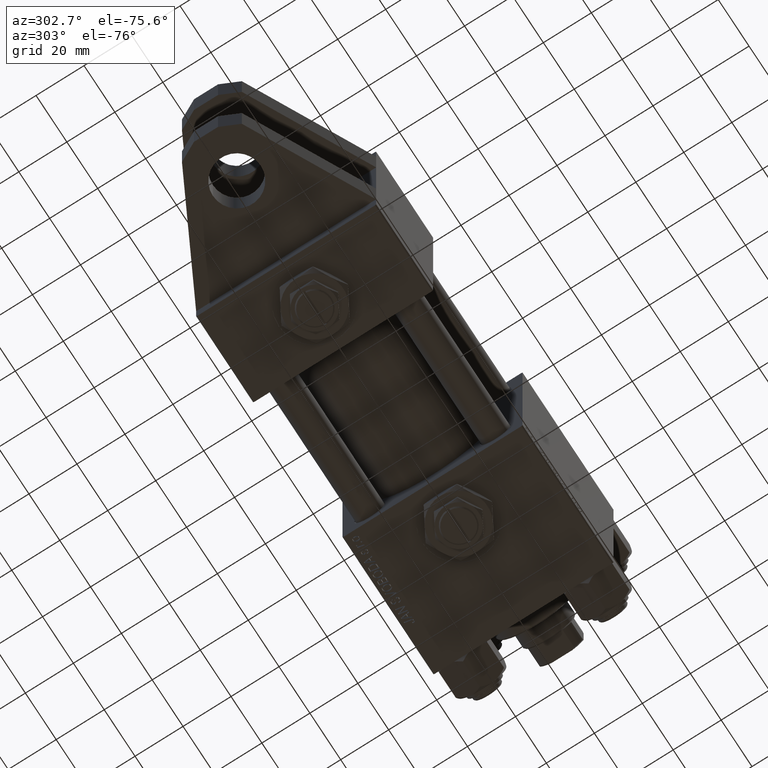
[diagram: clean part render]
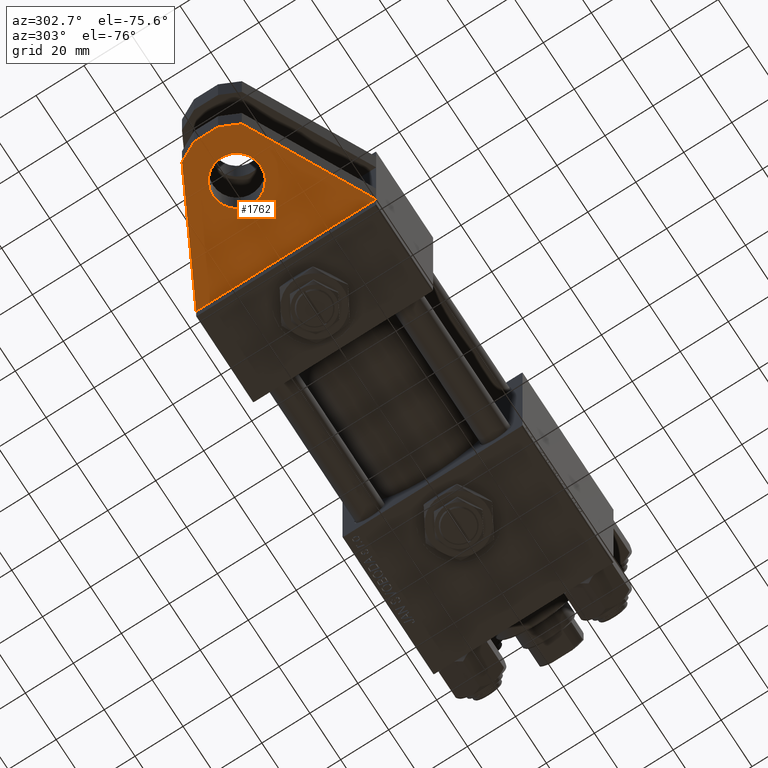
[diagram: same view with one face highlighted and labeled with its STEP entity id]
A machine part, auxiliary view. The second image highlights one B-rep face of the part: STEP entity #1762.
In plain terms, the highlighted planar face has unit normal (0, 0, -1).
Its self-contained STEP definition (entity closure, byte-faithful):
#857 = DIRECTION ( 'NONE',  ( 0.000000000000000000, 1.000000000000000000, 0.000000000000000000 ) ) ;
#1125 = EDGE_CURVE ( 'NONE', #35810, #23468, #9716, .T. ) ;
#1762 = ADVANCED_FACE ( 'NONE', ( #9073, #40982 ), #48820, .T. ) ;
#2249 = VERTEX_POINT ( 'NONE', #18892 ) ;
#3546 = CARTESIAN_POINT ( 'NONE',  ( -52.00000000000000711, 30.00000000000000000, 4.999999999999992895 ) ) ;
#3891 = VERTEX_POINT ( 'NONE', #40420 ) ;
#6508 = DIRECTION ( 'NONE',  ( 0.8875055616531780656, 0.000000000000000000, 0.4607970030660757943 ) ) ;
#6555 = CIRCLE ( 'NONE', #20767, 10.00000000000000000 ) ;
#6766 = CARTESIAN_POINT ( 'NONE',  ( -48.15077811301358679, 30.00000000000000000, 12.49989272354909353 ) ) ;
#7259 = VERTEX_POINT ( 'NONE', #12391 ) ;
#7728 = LINE ( 'NONE', #3546, #36171 ) ;
#8822 = CARTESIAN_POINT ( 'NONE',  ( 0.000000000000000000, 30.00000000000000000, 0.000000000000000000 ) ) ;
#8826 = CARTESIAN_POINT ( 'NONE',  ( -52.00000000000000711, 30.00000000000000000, -5.000000000000007105 ) ) ;
#9073 = FACE_OUTER_BOUND ( 'NONE', #43238, .T. ) ;
#9577 = DIRECTION ( 'NONE',  ( 0.000000000000000000, 0.000000000000000000, 1.000000000000000000 ) ) ;
#9716 = LINE ( 'NONE', #48942, #40971 ) ;
#10026 = LINE ( 'NONE', #45839, #34124 ) ;
#11086 = VERTEX_POINT ( 'NONE', #37834 ) ;
#11135 = AXIS2_PLACEMENT_3D ( 'NONE', #27795, #857, #16539 ) ;
#12391 = CARTESIAN_POINT ( 'NONE',  ( -48.15077811301358679, 30.00000000000000000, 12.49989272354909353 ) ) ;
#12735 = DIRECTION ( 'NONE',  ( -0.000000000000000000, 1.000000000000000000, 0.000000000000000000 ) ) ;
#13437 = DIRECTION ( 'NONE',  ( -0.4226182617406929465, -0.000000000000000000, 0.9063077870366529343 ) ) ;
#13515 = VERTEX_POINT ( 'NONE', #19700 ) ;
#13580 = CARTESIAN_POINT ( 'NONE',  ( -52.00000000000000711, 30.00000000000000000, 4.999999999999992895 ) ) ;
#14230 = ORIENTED_EDGE ( 'NONE', *, *, #44731, .T. ) ;
#15826 = DIRECTION ( 'NONE',  ( 0.4566099510066921607, 0.000000000000000000, 0.8896669897448518105 ) ) ;
#16036 = EDGE_CURVE ( 'NONE', #23468, #7259, #7728, .T. ) ;
#16473 = VECTOR ( 'NONE', #6508, 1000.000000000000114 ) ;
#16539 = DIRECTION ( 'NONE',  ( 0.000000000000000000, 0.000000000000000000, 1.000000000000000000 ) ) ;
#18892 = CARTESIAN_POINT ( 'NONE',  ( -48.43732805352595960, 30.00000000000000000, -12.64017464471899110 ) ) ;
#19700 = CARTESIAN_POINT ( 'NONE',  ( -32.00000000000000000, 30.00000000000000000, -10.00000000000000711 ) ) ;
#20767 = AXIS2_PLACEMENT_3D ( 'NONE', #45394, #24981, #9577 ) ;
#21675 = ORIENTED_EDGE ( 'NONE', *, *, #1125, .T. ) ;
#21703 = DIRECTION ( 'NONE',  ( 0.000000000000000000, 0.000000000000000000, -1.000000000000000000 ) ) ;
#22318 = EDGE_CURVE ( 'NONE', #3891, #43563, #45536, .T. ) ;
#23143 = ORIENTED_EDGE ( 'NONE', *, *, #29692, .T. ) ;
#23468 = VERTEX_POINT ( 'NONE', #13580 ) ;
#24228 = DIRECTION ( 'NONE',  ( 0.000000000000000000, -0.000000000000000000, 1.000000000000000000 ) ) ;
#24448 = CARTESIAN_POINT ( 'NONE',  ( 0.000000000000000000, 30.00000000000000000, -37.50000000000000711 ) ) ;
#24981 = DIRECTION ( 'NONE',  ( 0.000000000000000000, 1.000000000000000000, 0.000000000000000000 ) ) ;
#27584 = AXIS2_PLACEMENT_3D ( 'NONE', #8822, #12735, #24228 ) ;
#27795 = CARTESIAN_POINT ( 'NONE',  ( -32.00000000000000000, 30.00000000000000000, -6.938893903907228378E-15 ) ) ;
#28632 = CIRCLE ( 'NONE', #11135, 10.00000000000000000 ) ;
#29531 = VECTOR ( 'NONE', #21703, 1000.000000000000000 ) ;
#29692 = EDGE_CURVE ( 'NONE', #7259, #3891, #30292, .T. ) ;
#30292 = LINE ( 'NONE', #6766, #16473 ) ;
#30833 = ORIENTED_EDGE ( 'NONE', *, *, #33492, .F. ) ;
#32326 = ORIENTED_EDGE ( 'NONE', *, *, #49427, .F. ) ;
#33492 = EDGE_CURVE ( 'NONE', #11086, #13515, #6555, .T. ) ;
#34124 = VECTOR ( 'NONE', #13437, 1000.000000000000114 ) ;
#34865 = EDGE_CURVE ( 'NONE', #2249, #35810, #10026, .T. ) ;
#35270 = VECTOR ( 'NONE', #36148, 1000.000000000000000 ) ;
#35810 = VERTEX_POINT ( 'NONE', #8826 ) ;
#36148 = DIRECTION ( 'NONE',  ( -0.8896669897448514774, -0.000000000000000000, 0.4566099510066927158 ) ) ;
#36171 = VECTOR ( 'NONE', #15826, 1000.000000000000000 ) ;
#36418 = LINE ( 'NONE', #40362, #35270 ) ;
#37668 = DIRECTION ( 'NONE',  ( 0.000000000000000000, 0.000000000000000000, 1.000000000000000000 ) ) ;
#37834 = CARTESIAN_POINT ( 'NONE',  ( -32.00000000000000000, 30.00000000000000000, 9.999999999999992895 ) ) ;
#38055 = ORIENTED_EDGE ( 'NONE', *, *, #16036, .T. ) ;
#40362 = CARTESIAN_POINT ( 'NONE',  ( -48.43732805352595960, 30.00000000000000000, -12.64017464471899110 ) ) ;
#40420 = CARTESIAN_POINT ( 'NONE',  ( 0.000000000000000000, 30.00000000000000000, 37.50000000000000000 ) ) ;
#40831 = EDGE_LOOP ( 'NONE', ( #32326, #30833 ) ) ;
#40971 = VECTOR ( 'NONE', #37668, 1000.000000000000000 ) ;
#40972 = ORIENTED_EDGE ( 'NONE', *, *, #22318, .T. ) ;
#40982 = FACE_BOUND ( 'NONE', #40831, .T. ) ;
#41351 = ORIENTED_EDGE ( 'NONE', *, *, #34865, .T. ) ;
#43238 = EDGE_LOOP ( 'NONE', ( #38055, #23143, #40972, #14230, #41351, #21675 ) ) ;
#43563 = VERTEX_POINT ( 'NONE', #24448 ) ;
#44731 = EDGE_CURVE ( 'NONE', #43563, #2249, #36418, .T. ) ;
#45394 = CARTESIAN_POINT ( 'NONE',  ( -32.00000000000000000, 30.00000000000000000, -6.938893903907228378E-15 ) ) ;
#45536 = LINE ( 'NONE', #45776, #29531 ) ;
#45776 = CARTESIAN_POINT ( 'NONE',  ( 0.000000000000000000, 30.00000000000000000, 37.49999999999999289 ) ) ;
#45839 = CARTESIAN_POINT ( 'NONE',  ( -52.00000000000000711, 30.00000000000000000, -5.000000000000007105 ) ) ;
#48820 = PLANE ( 'NONE',  #27584 ) ;
#48942 = CARTESIAN_POINT ( 'NONE',  ( -52.00000000000000711, 30.00000000000000000, -5.000000000000007105 ) ) ;
#49427 = EDGE_CURVE ( 'NONE', #13515, #11086, #28632, .T. ) ;